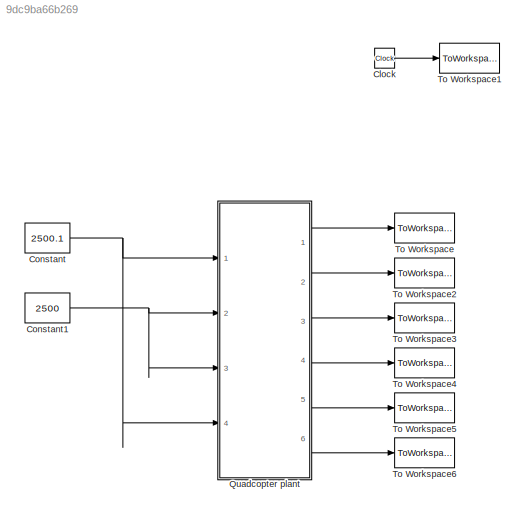
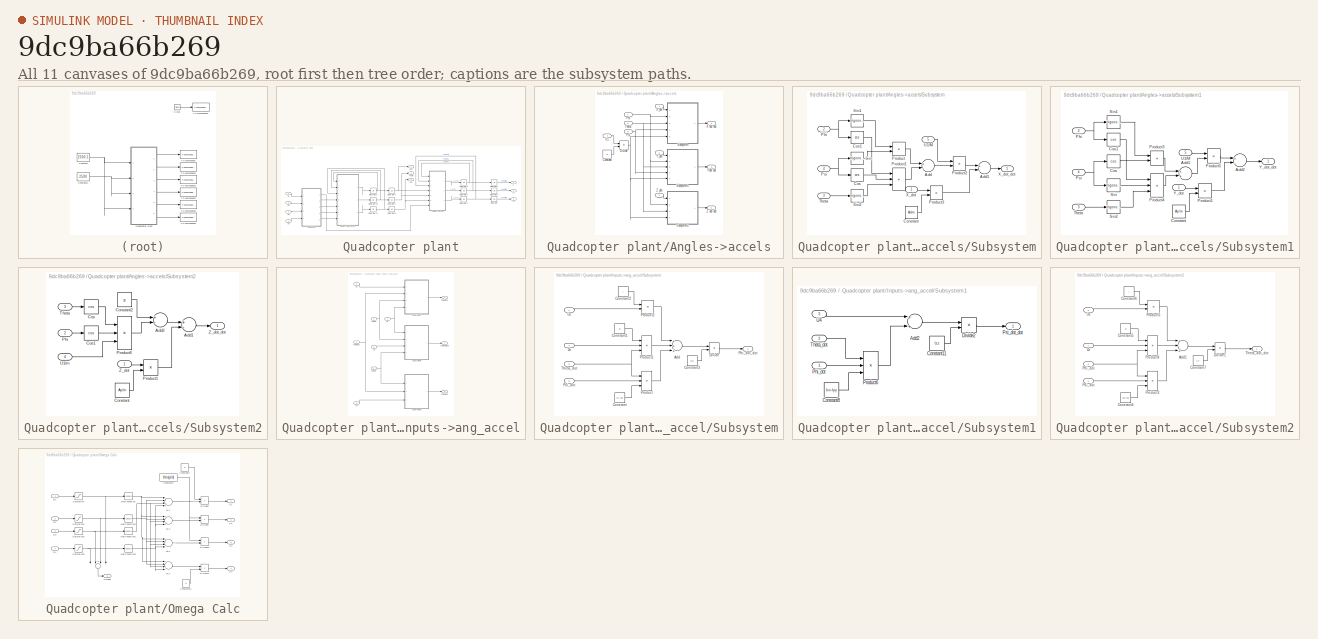
[diagram: thumbnail index - all 11 canvases of the model, root first then tree order]
MODEL slx_9dc9ba66b269
KIND model
CONFIG AbsTol = auto
CONFIG EnableMultiTasking = off
CONFIG FixedStep = .001
CONFIG MaxStep = auto
CONFIG MinStep = auto
CONFIG RelTol = 1e-3
CONFIG SampleTimeConstraint = Unconstrained
CONFIG Solver = VariableStepAuto
CONFIG SolverName = VariableStepAuto
CONFIG StartTime = 0.0
CONFIG StopTime = TF
BLOCK [Clock] Clock
BLOCK [Constant] Constant
  Value = 2500.1
BLOCK [Constant] Constant1
  Value = 2500
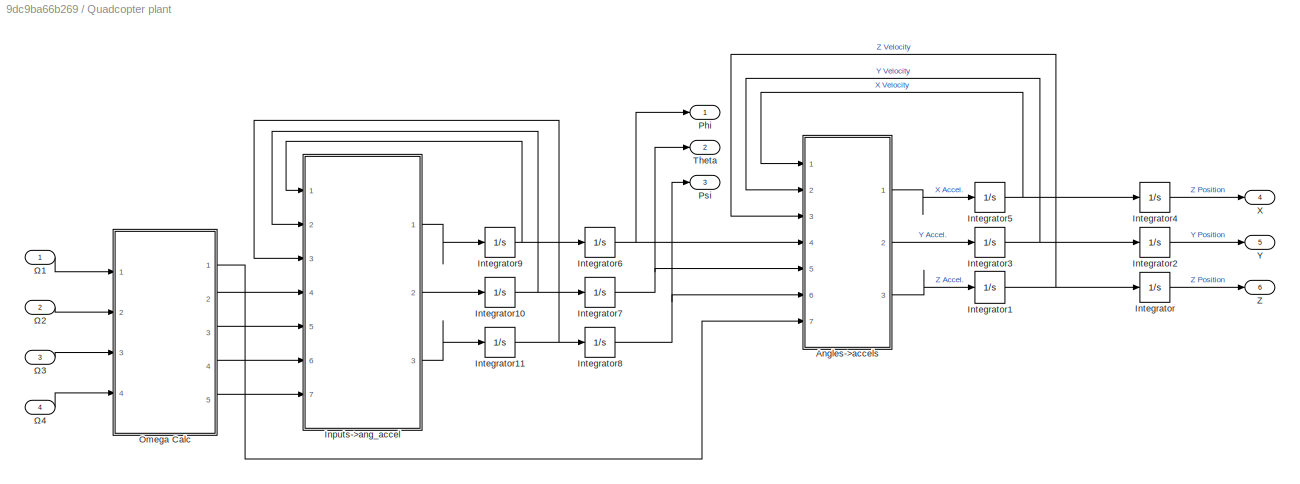
BLOCK [SubSystem] Quadcopter plant
  Ports = [4, 6]
  RequestExecContextInheritance = off
  Variant = off
BLOCK [SubSystem] Quadcopter plant/Angles->accels
  Ports = [7, 3]
  RequestExecContextInheritance = off
  Variant = off
BLOCK [Constant] Quadcopter plant/Angles->accels/Constant
  Value = m
BLOCK [Product] Quadcopter plant/Angles->accels/Divide
  InputSameDT = off
  Inputs = */
  OutDataTypeStr = Inherit: Inherit via internal rule
  Ports = [2, 1]
  RndMeth = Floor
  SaturateOnIntegerOverflow = off
BLOCK [Inport] Quadcopter plant/Angles->accels/Phi
  IconDisplay = Port number
  Port = 4
BLOCK [Inport] Quadcopter plant/Angles->accels/Psi
  IconDisplay = Port number
  Port = 6
BLOCK [SubSystem] Quadcopter plant/Angles->accels/Subsystem
  Ports = [5, 1]
  RequestExecContextInheritance = off
  Variant = off
BLOCK [Sum] Quadcopter plant/Angles->accels/Subsystem/Add
  InputSameDT = off
  Inputs = +-
  OutDataTypeStr = Inherit: Inherit via internal rule
  Ports = [2, 1]
  SaturateOnIntegerOverflow = off
BLOCK [Sum] Quadcopter plant/Angles->accels/Subsystem/Add1
  InputSameDT = off
  Inputs = +-
  OutDataTypeStr = Inherit: Inherit via internal rule
  Ports = [2, 1]
  SaturateOnIntegerOverflow = off
BLOCK [Constant] Quadcopter plant/Angles->accels/Subsystem/Constant
  Value = Ax/m
BLOCK [Trigonometry] Quadcopter plant/Angles->accels/Subsystem/Cos
  Operator = cos
  Ports = [1, 1]
BLOCK [Trigonometry] Quadcopter plant/Angles->accels/Subsystem/Cos1
  Operator = cos
  Ports = [1, 1]
BLOCK [Inport] Quadcopter plant/Angles->accels/Subsystem/Phi
  IconDisplay = Port number
  Port = 2
BLOCK [Product] Quadcopter plant/Angles->accels/Subsystem/Product
  InputSameDT = off
  OutDataTypeStr = Inherit: Inherit via internal rule
  Ports = [2, 1]
  RndMeth = Floor
  SaturateOnIntegerOverflow = off
BLOCK [Product] Quadcopter plant/Angles->accels/Subsystem/Product1
  InputSameDT = off
  Inputs = 3
  OutDataTypeStr = Inherit: Inherit via internal rule
  Ports = [3, 1]
  RndMeth = Floor
  SaturateOnIntegerOverflow = off
BLOCK [Product] Quadcopter plant/Angles->accels/Subsystem/Product2
  InputSameDT = off
  OutDataTypeStr = Inherit: Inherit via internal rule
  Ports = [2, 1]
  RndMeth = Floor
  SaturateOnIntegerOverflow = off
BLOCK [Product] Quadcopter plant/Angles->accels/Subsystem/Product3
  InputSameDT = off
  OutDataTypeStr = Inherit: Inherit via internal rule
  Ports = [2, 1]
  RndMeth = Floor
  SaturateOnIntegerOverflow = off
BLOCK [Inport] Quadcopter plant/Angles->accels/Subsystem/Psi
  IconDisplay = Port number
  Port = 4
BLOCK [Trigonometry] Quadcopter plant/Angles->accels/Subsystem/Sin
  Ports = [1, 1]
BLOCK [Trigonometry] Quadcopter plant/Angles->accels/Subsystem/Sin1
  Ports = [1, 1]
BLOCK [Trigonometry] Quadcopter plant/Angles->accels/Subsystem/Sin2
  Ports = [1, 1]
BLOCK [Inport] Quadcopter plant/Angles->accels/Subsystem/Theta
  IconDisplay = Port number
  Port = 3
BLOCK [Inport] Quadcopter plant/Angles->accels/Subsystem/U1//M
  IconDisplay = Port number
  Port = 5
BLOCK [Inport] Quadcopter plant/Angles->accels/Subsystem/X_dot
  IconDisplay = Port number
BLOCK [Outport] Quadcopter plant/Angles->accels/Subsystem/X_dot_dot
  IconDisplay = Port number
BLOCK [SubSystem] Quadcopter plant/Angles->accels/Subsystem1
  Ports = [5, 1]
  RequestExecContextInheritance = off
  Variant = off
BLOCK [Sum] Quadcopter plant/Angles->accels/Subsystem1/Add1
  InputSameDT = off
  OutDataTypeStr = Inherit: Inherit via internal rule
  Ports = [2, 1]
  SaturateOnIntegerOverflow = off
BLOCK [Sum] Quadcopter plant/Angles->accels/Subsystem1/Add2
  InputSameDT = off
  Inputs = +-
  OutDataTypeStr = Inherit: Inherit via internal rule
  Ports = [2, 1]
  SaturateOnIntegerOverflow = off
BLOCK [Constant] Quadcopter plant/Angles->accels/Subsystem1/Constant
  Value = Ay/m
BLOCK [Trigonometry] Quadcopter plant/Angles->accels/Subsystem1/Cos
  Operator = cos
  Ports = [1, 1]
BLOCK [Trigonometry] Quadcopter plant/Angles->accels/Subsystem1/Cos1
  Operator = cos
  Ports = [1, 1]
BLOCK [Inport] Quadcopter plant/Angles->accels/Subsystem1/Phi
  IconDisplay = Port number
  Port = 2
BLOCK [Product] Quadcopter plant/Angles->accels/Subsystem1/Product1
  InputSameDT = off
  OutDataTypeStr = Inherit: Inherit via internal rule
  Ports = [2, 1]
  RndMeth = Floor
  SaturateOnIntegerOverflow = off
BLOCK [Product] Quadcopter plant/Angles->accels/Subsystem1/Product3
  InputSameDT = off
  OutDataTypeStr = Inherit: Inherit via internal rule
  Ports = [2, 1]
  RndMeth = Floor
  SaturateOnIntegerOverflow = off
BLOCK [Product] Quadcopter plant/Angles->accels/Subsystem1/Product4
  InputSameDT = off
  Inputs = 3
  OutDataTypeStr = Inherit: Inherit via internal rule
  Ports = [3, 1]
  RndMeth = Floor
  SaturateOnIntegerOverflow = off
BLOCK [Product] Quadcopter plant/Angles->accels/Subsystem1/Product5
  InputSameDT = off
  OutDataTypeStr = Inherit: Inherit via internal rule
  Ports = [2, 1]
  RndMeth = Floor
  SaturateOnIntegerOverflow = off
BLOCK [Inport] Quadcopter plant/Angles->accels/Subsystem1/Psi
  IconDisplay = Port number
  Port = 4
BLOCK [Trigonometry] Quadcopter plant/Angles->accels/Subsystem1/Sin
  Ports = [1, 1]
BLOCK [Trigonometry] Quadcopter plant/Angles->accels/Subsystem1/Sin1
  Ports = [1, 1]
BLOCK [Trigonometry] Quadcopter plant/Angles->accels/Subsystem1/Sin2
  Ports = [1, 1]
BLOCK [Inport] Quadcopter plant/Angles->accels/Subsystem1/Theta
  IconDisplay = Port number
  Port = 3
BLOCK [Inport] Quadcopter plant/Angles->accels/Subsystem1/U1//M
  IconDisplay = Port number
  Port = 5
BLOCK [Inport] Quadcopter plant/Angles->accels/Subsystem1/Y_dot
  IconDisplay = Port number
BLOCK [Outport] Quadcopter plant/Angles->accels/Subsystem1/Y_dot_dot
  IconDisplay = Port number
BLOCK [SubSystem] Quadcopter plant/Angles->accels/Subsystem2
  Ports = [4, 1]
  RequestExecContextInheritance = off
  Variant = off
BLOCK [Sum] Quadcopter plant/Angles->accels/Subsystem2/Add1
  InputSameDT = off
  Inputs = +-
  OutDataTypeStr = Inherit: Inherit via internal rule
  Ports = [2, 1]
  SaturateOnIntegerOverflow = off
BLOCK [Sum] Quadcopter plant/Angles->accels/Subsystem2/Add2
  InputSameDT = off
  Inputs = +-
  OutDataTypeStr = Inherit: Inherit via internal rule
  Ports = [2, 1]
  SaturateOnIntegerOverflow = off
BLOCK [Constant] Quadcopter plant/Angles->accels/Subsystem2/Constant
  Value = Ay/m
BLOCK [Constant] Quadcopter plant/Angles->accels/Subsystem2/Constant2
  Value = g
BLOCK [Trigonometry] Quadcopter plant/Angles->accels/Subsystem2/Cos
  Operator = cos
  Ports = [1, 1]
BLOCK [Trigonometry] Quadcopter plant/Angles->accels/Subsystem2/Cos1
  Operator = cos
  Ports = [1, 1]
BLOCK [Inport] Quadcopter plant/Angles->accels/Subsystem2/Phi
  IconDisplay = Port number
  Port = 2
BLOCK [Product] Quadcopter plant/Angles->accels/Subsystem2/Product1
  InputSameDT = off
  OutDataTypeStr = Inherit: Inherit via internal rule
  Ports = [2, 1]
  RndMeth = Floor
  SaturateOnIntegerOverflow = off
BLOCK [Product] Quadcopter plant/Angles->accels/Subsystem2/Product6
  InputSameDT = off
  Inputs = 3
  OutDataTypeStr = Inherit: Inherit via internal rule
  Ports = [3, 1]
  RndMeth = Floor
  SaturateOnIntegerOverflow = off
BLOCK [Inport] Quadcopter plant/Angles->accels/Subsystem2/Theta
  IconDisplay = Port number
  Port = 3
BLOCK [Inport] Quadcopter plant/Angles->accels/Subsystem2/U1//m
  IconDisplay = Port number
  Port = 4
BLOCK [Inport] Quadcopter plant/Angles->accels/Subsystem2/Z_dot
  IconDisplay = Port number
BLOCK [Outport] Quadcopter plant/Angles->accels/Subsystem2/Z_dot_dot
  IconDisplay = Port number
BLOCK [Inport] Quadcopter plant/Angles->accels/Theta
  IconDisplay = Port number
  Port = 5
BLOCK [Inport] Quadcopter plant/Angles->accels/U1
  IconDisplay = Port number
  Port = 7
BLOCK [Outport] Quadcopter plant/Angles->accels/X dot dot
  IconDisplay = Port number
BLOCK [Inport] Quadcopter plant/Angles->accels/X_dot
  IconDisplay = Port number
BLOCK [Inport] Quadcopter plant/Angles->accels/Y_dot
  IconDisplay = Port number
  Port = 2
BLOCK [Outport] Quadcopter plant/Angles->accels/Ydot dot
  IconDisplay = Port number
  Port = 2
BLOCK [Outport] Quadcopter plant/Angles->accels/Z dot dot
  IconDisplay = Port number
  Port = 3
BLOCK [Inport] Quadcopter plant/Angles->accels/Z_dot
  IconDisplay = Port number
  Port = 3
BLOCK [SubSystem] Quadcopter plant/Inputs->ang_accel
  Ports = [7, 3]
  RequestExecContextInheritance = off
  Variant = off
BLOCK [Inport] Quadcopter plant/Inputs->ang_accel/Phi dot
  IconDisplay = Port number
BLOCK [Outport] Quadcopter plant/Inputs->ang_accel/Phi dot dot
  IconDisplay = Port number
BLOCK [Inport] Quadcopter plant/Inputs->ang_accel/Psi dot
  IconDisplay = Port number
  Port = 3
BLOCK [Outport] Quadcopter plant/Inputs->ang_accel/Psi dot dot
  IconDisplay = Port number
  Port = 3
BLOCK [SubSystem] Quadcopter plant/Inputs->ang_accel/Subsystem
  Ports = [4, 1]
  RequestExecContextInheritance = off
  Variant = off
BLOCK [Sum] Quadcopter plant/Inputs->ang_accel/Subsystem/Add
  InputSameDT = off
  Inputs = +++
  OutDataTypeStr = Inherit: Inherit via internal rule
  Ports = [3, 1]
  SaturateOnIntegerOverflow = off
BLOCK [Constant] Quadcopter plant/Inputs->ang_accel/Subsystem/Constant
  Value = Iyy-Izz
BLOCK [Constant] Quadcopter plant/Inputs->ang_accel/Subsystem/Constant1
  Value = Jr
BLOCK [Constant] Quadcopter plant/Inputs->ang_accel/Subsystem/Constant2
  Value = l
BLOCK [Constant] Quadcopter plant/Inputs->ang_accel/Subsystem/Constant3
  Value = Ixx
BLOCK [Product] Quadcopter plant/Inputs->ang_accel/Subsystem/Divide
  InputSameDT = off
  Inputs = */
  OutDataTypeStr = Inherit: Inherit via internal rule
  Ports = [2, 1]
  RndMeth = Floor
  SaturateOnIntegerOverflow = off
BLOCK [Outport] Quadcopter plant/Inputs->ang_accel/Subsystem/Phi_dot_dot
  IconDisplay = Port number
BLOCK [Product] Quadcopter plant/Inputs->ang_accel/Subsystem/Product
  InputSameDT = off
  Inputs = 3
  OutDataTypeStr = Inherit: Inherit via internal rule
  Ports = [3, 1]
  RndMeth = Floor
  SaturateOnIntegerOverflow = off
BLOCK [Product] Quadcopter plant/Inputs->ang_accel/Subsystem/Product1
  InputSameDT = off
  Inputs = 3
  OutDataTypeStr = Inherit: Inherit via internal rule
  Ports = [3, 1]
  RndMeth = Floor
  SaturateOnIntegerOverflow = off
BLOCK [Product] Quadcopter plant/Inputs->ang_accel/Subsystem/Product2
  InputSameDT = off
  OutDataTypeStr = Inherit: Inherit via internal rule
  Ports = [2, 1]
  RndMeth = Floor
  SaturateOnIntegerOverflow = off
BLOCK [Inport] Quadcopter plant/Inputs->ang_accel/Subsystem/Psi_dot
  IconDisplay = Port number
  Port = 3
BLOCK [Inport] Quadcopter plant/Inputs->ang_accel/Subsystem/Theta_dot
  IconDisplay = Port number
  Port = 2
BLOCK [Inport] Quadcopter plant/Inputs->ang_accel/Subsystem/U2
  IconDisplay = Port number
BLOCK [Inport] Quadcopter plant/Inputs->ang_accel/Subsystem/Ωr
  IconDisplay = Port number
  Port = 4
BLOCK [SubSystem] Quadcopter plant/Inputs->ang_accel/Subsystem1
  Ports = [3, 1]
  RequestExecContextInheritance = off
  Variant = off
BLOCK [Sum] Quadcopter plant/Inputs->ang_accel/Subsystem1/Add2
  InputSameDT = off
  OutDataTypeStr = Inherit: Inherit via internal rule
  Ports = [2, 1]
  SaturateOnIntegerOverflow = off
BLOCK [Constant] Quadcopter plant/Inputs->ang_accel/Subsystem1/Constant11
  Value = Izz
BLOCK [Constant] Quadcopter plant/Inputs->ang_accel/Subsystem1/Constant8
  Value = Ixx-Iyy
BLOCK [Product] Quadcopter plant/Inputs->ang_accel/Subsystem1/Divide2
  InputSameDT = off
  Inputs = */
  OutDataTypeStr = Inherit: Inherit via internal rule
  Ports = [2, 1]
  RndMeth = Floor
  SaturateOnIntegerOverflow = off
BLOCK [Inport] Quadcopter plant/Inputs->ang_accel/Subsystem1/Phi_dot
  IconDisplay = Port number
BLOCK [Product] Quadcopter plant/Inputs->ang_accel/Subsystem1/Product6
  InputSameDT = off
  Inputs = 3
  OutDataTypeStr = Inherit: Inherit via internal rule
  Ports = [3, 1]
  RndMeth = Floor
  SaturateOnIntegerOverflow = off
BLOCK [Outport] Quadcopter plant/Inputs->ang_accel/Subsystem1/Psi_dot_dot
  IconDisplay = Port number
BLOCK [Inport] Quadcopter plant/Inputs->ang_accel/Subsystem1/Theta_dot
  IconDisplay = Port number
  Port = 2
BLOCK [Inport] Quadcopter plant/Inputs->ang_accel/Subsystem1/U4
  IconDisplay = Port number
  Port = 3
BLOCK [SubSystem] Quadcopter plant/Inputs->ang_accel/Subsystem2
  Ports = [4, 1]
  RequestExecContextInheritance = off
  Variant = off
BLOCK [Sum] Quadcopter plant/Inputs->ang_accel/Subsystem2/Add1
  InputSameDT = off
  Inputs = +-+
  OutDataTypeStr = Inherit: Inherit via internal rule
  Ports = [3, 1]
  SaturateOnIntegerOverflow = off
BLOCK [Constant] Quadcopter plant/Inputs->ang_accel/Subsystem2/Constant4
  Value = Izz-Ixx
BLOCK [Constant] Quadcopter plant/Inputs->ang_accel/Subsystem2/Constant5
  Value = Jr
BLOCK [Constant] Quadcopter plant/Inputs->ang_accel/Subsystem2/Constant6
  Value = l
BLOCK [Constant] Quadcopter plant/Inputs->ang_accel/Subsystem2/Constant7
  Value = Iyy
BLOCK [Product] Quadcopter plant/Inputs->ang_accel/Subsystem2/Divide1
  InputSameDT = off
  Inputs = */
  OutDataTypeStr = Inherit: Inherit via internal rule
  Ports = [2, 1]
  RndMeth = Floor
  SaturateOnIntegerOverflow = off
BLOCK [Inport] Quadcopter plant/Inputs->ang_accel/Subsystem2/Phi_dot
  IconDisplay = Port number
  Port = 4
BLOCK [Product] Quadcopter plant/Inputs->ang_accel/Subsystem2/Product3
  InputSameDT = off
  Inputs = 3
  OutDataTypeStr = Inherit: Inherit via internal rule
  Ports = [3, 1]
  RndMeth = Floor
  SaturateOnIntegerOverflow = off
BLOCK [Product] Quadcopter plant/Inputs->ang_accel/Subsystem2/Product4
  InputSameDT = off
  Inputs = 3
  OutDataTypeStr = Inherit: Inherit via internal rule
  Ports = [3, 1]
  RndMeth = Floor
  SaturateOnIntegerOverflow = off
BLOCK [Product] Quadcopter plant/Inputs->ang_accel/Subsystem2/Product5
  InputSameDT = off
  OutDataTypeStr = Inherit: Inherit via internal rule
  Ports = [2, 1]
  RndMeth = Floor
  SaturateOnIntegerOverflow = off
BLOCK [Inport] Quadcopter plant/Inputs->ang_accel/Subsystem2/Psi_dot
  IconDisplay = Port number
  Port = 2
BLOCK [Outport] Quadcopter plant/Inputs->ang_accel/Subsystem2/Theta_dot_dot
  IconDisplay = Port number
BLOCK [Inport] Quadcopter plant/Inputs->ang_accel/Subsystem2/U3
  IconDisplay = Port number
  Port = 3
BLOCK [Inport] Quadcopter plant/Inputs->ang_accel/Subsystem2/Ωr
  IconDisplay = Port number
BLOCK [Inport] Quadcopter plant/Inputs->ang_accel/Theta dot
  IconDisplay = Port number
  Port = 2
BLOCK [Outport] Quadcopter plant/Inputs->ang_accel/Theta dot dot
  IconDisplay = Port number
  Port = 2
BLOCK [Inport] Quadcopter plant/Inputs->ang_accel/U2
  IconDisplay = Port number
  Port = 4
BLOCK [Inport] Quadcopter plant/Inputs->ang_accel/U3
  IconDisplay = Port number
  Port = 5
BLOCK [Inport] Quadcopter plant/Inputs->ang_accel/U4
  IconDisplay = Port number
  Port = 6
BLOCK [Inport] Quadcopter plant/Inputs->ang_accel/Ωr
  IconDisplay = Port number
  Port = 7
BLOCK [Integrator] Quadcopter plant/Integrator
  LimitOutput = on
  Ports = [1, 1]
  UpperSaturationLimit = 0
BLOCK [Integrator] Quadcopter plant/Integrator1
  Ports = [1, 1]
BLOCK [Integrator] Quadcopter plant/Integrator10
  LowerSaturationLimit = -10000
  Ports = [1, 1]
  UpperSaturationLimit = 10000
BLOCK [Integrator] Quadcopter plant/Integrator11
  LowerSaturationLimit = -10000
  Ports = [1, 1]
  UpperSaturationLimit = 10000
BLOCK [Integrator] Quadcopter plant/Integrator2
  Ports = [1, 1]
BLOCK [Integrator] Quadcopter plant/Integrator3
  Ports = [1, 1]
BLOCK [Integrator] Quadcopter plant/Integrator4
  Ports = [1, 1]
BLOCK [Integrator] Quadcopter plant/Integrator5
  Ports = [1, 1]
BLOCK [Integrator] Quadcopter plant/Integrator6
  Ports = [1, 1]
  WrapState = on
BLOCK [Integrator] Quadcopter plant/Integrator7
  Ports = [1, 1]
  WrapState = on
BLOCK [Integrator] Quadcopter plant/Integrator8
  Ports = [1, 1]
BLOCK [Integrator] Quadcopter plant/Integrator9
  Ports = [1, 1]
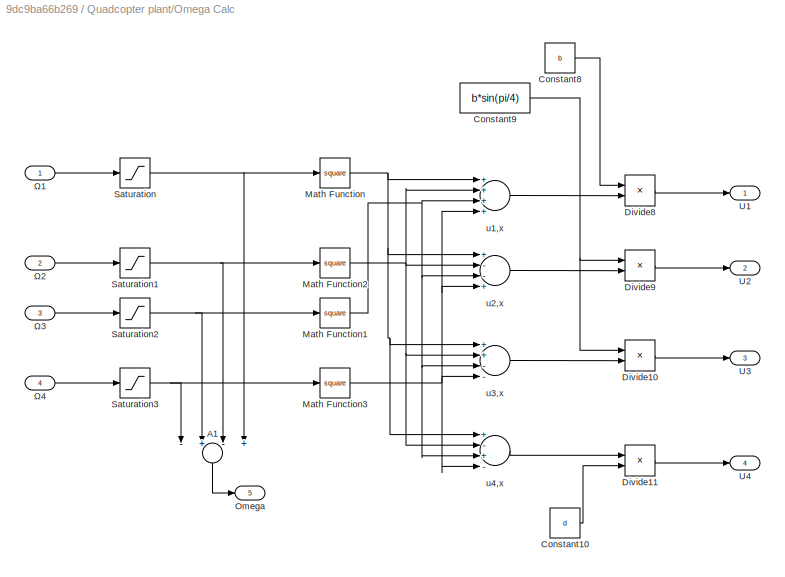
BLOCK [SubSystem] Quadcopter plant/Omega Calc
  Ports = [4, 5]
  RequestExecContextInheritance = off
  Variant = off
BLOCK [Sum] Quadcopter plant/Omega Calc/A1
  InputSameDT = off
  Inputs = -+-+
  OutDataTypeStr = Inherit: Inherit via internal rule
  Ports = [4, 1]
  SaturateOnIntegerOverflow = off
BLOCK [Constant] Quadcopter plant/Omega Calc/Constant10
  Value = d
BLOCK [Constant] Quadcopter plant/Omega Calc/Constant8
  Value = b
BLOCK [Constant] Quadcopter plant/Omega Calc/Constant9
  Value = b*sin(pi/4)
BLOCK [Product] Quadcopter plant/Omega Calc/Divide10
  InputSameDT = off
  Inputs = **
  OutDataTypeStr = Inherit: Inherit via internal rule
  Ports = [2, 1]
  RndMeth = Floor
  SaturateOnIntegerOverflow = off
BLOCK [Product] Quadcopter plant/Omega Calc/Divide11
  InputSameDT = off
  Inputs = **
  OutDataTypeStr = Inherit: Inherit via internal rule
  Ports = [2, 1]
  RndMeth = Floor
  SaturateOnIntegerOverflow = off
BLOCK [Product] Quadcopter plant/Omega Calc/Divide8
  InputSameDT = off
  Inputs = **
  OutDataTypeStr = Inherit: Inherit via internal rule
  Ports = [2, 1]
  RndMeth = Floor
  SaturateOnIntegerOverflow = off
BLOCK [Product] Quadcopter plant/Omega Calc/Divide9
  InputSameDT = off
  Inputs = **
  OutDataTypeStr = Inherit: Inherit via internal rule
  Ports = [2, 1]
  RndMeth = Floor
  SaturateOnIntegerOverflow = off
BLOCK [Math] Quadcopter plant/Omega Calc/Math Function
  Operator = square
  Ports = [1, 1]
BLOCK [Math] Quadcopter plant/Omega Calc/Math Function1
  Operator = square
  Ports = [1, 1]
BLOCK [Math] Quadcopter plant/Omega Calc/Math Function2
  Operator = square
  Ports = [1, 1]
BLOCK [Math] Quadcopter plant/Omega Calc/Math Function3
  Operator = square
  Ports = [1, 1]
BLOCK [Outport] Quadcopter plant/Omega Calc/Omega
  IconDisplay = Port number
  Port = 5
BLOCK [Saturate] Quadcopter plant/Omega Calc/Saturation
  InputPortMap = u0
  LowerLimit = 0
  Ports = [1, 1]
  UpperLimit = inf
BLOCK [Saturate] Quadcopter plant/Omega Calc/Saturation1
  InputPortMap = u0
  LowerLimit = 0
  Ports = [1, 1]
  UpperLimit = inf
BLOCK [Saturate] Quadcopter plant/Omega Calc/Saturation2
  InputPortMap = u0
  LowerLimit = 0
  Ports = [1, 1]
  UpperLimit = inf
BLOCK [Saturate] Quadcopter plant/Omega Calc/Saturation3
  InputPortMap = u0
  LowerLimit = 0
  Ports = [1, 1]
  UpperLimit = inf
BLOCK [Outport] Quadcopter plant/Omega Calc/U1
  IconDisplay = Port number
BLOCK [Outport] Quadcopter plant/Omega Calc/U2
  IconDisplay = Port number
  Port = 2
BLOCK [Outport] Quadcopter plant/Omega Calc/U3
  IconDisplay = Port number
  Port = 3
BLOCK [Outport] Quadcopter plant/Omega Calc/U4
  IconDisplay = Port number
  Port = 4
BLOCK [Sum] Quadcopter plant/Omega Calc/u1,x
  InputSameDT = off
  Inputs = ++++
  OutDataTypeStr = Inherit: Inherit via internal rule
  Ports = [4, 1]
  SaturateOnIntegerOverflow = off
BLOCK [Sum] Quadcopter plant/Omega Calc/u2,x
  InputSameDT = off
  Inputs = +--+
  OutDataTypeStr = Inherit: Inherit via internal rule
  Ports = [4, 1]
  SaturateOnIntegerOverflow = off
BLOCK [Sum] Quadcopter plant/Omega Calc/u3,x
  InputSameDT = off
  Inputs = ++--
  OutDataTypeStr = Inherit: Inherit via internal rule
  Ports = [4, 1]
  SaturateOnIntegerOverflow = off
BLOCK [Sum] Quadcopter plant/Omega Calc/u4,x
  InputSameDT = off
  Inputs = +-+-
  OutDataTypeStr = Inherit: Inherit via internal rule
  Ports = [4, 1]
  SaturateOnIntegerOverflow = off
BLOCK [Inport] Quadcopter plant/Omega Calc/Ω1
  IconDisplay = Port number
BLOCK [Inport] Quadcopter plant/Omega Calc/Ω2
  IconDisplay = Port number
  Port = 2
BLOCK [Inport] Quadcopter plant/Omega Calc/Ω3
  IconDisplay = Port number
  Port = 3
BLOCK [Inport] Quadcopter plant/Omega Calc/Ω4
  IconDisplay = Port number
  Port = 4
BLOCK [Outport] Quadcopter plant/Phi
  IconDisplay = Port number
BLOCK [Outport] Quadcopter plant/Psi
  IconDisplay = Port number
  Port = 3
BLOCK [Outport] Quadcopter plant/Theta
  IconDisplay = Port number
  Port = 2
BLOCK [Outport] Quadcopter plant/X
  IconDisplay = Port number
  Port = 4
BLOCK [Outport] Quadcopter plant/Y
  IconDisplay = Port number
  Port = 5
BLOCK [Outport] Quadcopter plant/Z
  IconDisplay = Port number
  Port = 6
BLOCK [Inport] Quadcopter plant/Ω1
  IconDisplay = Port number
BLOCK [Inport] Quadcopter plant/Ω2
  IconDisplay = Port number
  Port = 2
BLOCK [Inport] Quadcopter plant/Ω3
  IconDisplay = Port number
  Port = 3
BLOCK [Inport] Quadcopter plant/Ω4
  IconDisplay = Port number
  Port = 4
BLOCK [ToWorkspace] To Workspace
  FixptAsFi = on
  MaxDataPoints = inf
  Ports = [1]
  SampleTime = -1
  Save2DSignal = 2-D array (concatenate along first dimension)
  VariableName = Phi
BLOCK [ToWorkspace] To Workspace1
  FixptAsFi = on
  MaxDataPoints = inf
  Ports = [1]
  SampleTime = -1
  Save2DSignal = 2-D array (concatenate along first dimension)
  VariableName = time
BLOCK [ToWorkspace] To Workspace2
  FixptAsFi = on
  MaxDataPoints = inf
  Ports = [1]
  SampleTime = -1
  Save2DSignal = 2-D array (concatenate along first dimension)
  VariableName = Theta
BLOCK [ToWorkspace] To Workspace3
  FixptAsFi = on
  MaxDataPoints = inf
  Ports = [1]
  SampleTime = -1
  Save2DSignal = 2-D array (concatenate along first dimension)
  VariableName = Psi
BLOCK [ToWorkspace] To Workspace4
  FixptAsFi = on
  MaxDataPoints = inf
  Ports = [1]
  SampleTime = -1
  Save2DSignal = 2-D array (concatenate along first dimension)
  VariableName = X
BLOCK [ToWorkspace] To Workspace5
  FixptAsFi = on
  MaxDataPoints = inf
  Ports = [1]
  SampleTime = -1
  Save2DSignal = 2-D array (concatenate along first dimension)
  VariableName = Y
BLOCK [ToWorkspace] To Workspace6
  FixptAsFi = on
  MaxDataPoints = inf
  Ports = [1]
  SampleTime = -1
  Save2DSignal = 2-D array (concatenate along first dimension)
  VariableName = Z
LINE Clock:1 -> To Workspace1:1
NET Constant1:1 -> Quadcopter plant:2, Quadcopter plant:3
NET Constant:1 -> Quadcopter plant:1, Quadcopter plant:4
LINE Quadcopter plant/Angles->accels/Constant:1 -> Quadcopter plant/Angles->accels/Divide:2
NET Quadcopter plant/Angles->accels/Divide:1 -> Quadcopter plant/Angles->accels/Subsystem1:5, Quadcopter plant/Angles->accels/Subsystem2:4, Quadcopter plant/Angles->accels/Subsystem:5
NET Quadcopter plant/Angles->accels/Phi:1 -> Quadcopter plant/Angles->accels/Subsystem1:2, Quadcopter plant/Angles->accels/Subsystem2:2, Quadcopter plant/Angles->accels/Subsystem:2
NET Quadcopter plant/Angles->accels/Psi:1 -> Quadcopter plant/Angles->accels/Subsystem1:4, Quadcopter plant/Angles->accels/Subsystem:4
LINE Quadcopter plant/Angles->accels/Subsystem/Add1:1 -> Quadcopter plant/Angles->accels/Subsystem/X_dot_dot:1
LINE Quadcopter plant/Angles->accels/Subsystem/Add:1 -> Quadcopter plant/Angles->accels/Subsystem/Product2:2
LINE Quadcopter plant/Angles->accels/Subsystem/Constant:1 -> Quadcopter plant/Angles->accels/Subsystem/Product3:2
LINE Quadcopter plant/Angles->accels/Subsystem/Cos1:1 -> Quadcopter plant/Angles->accels/Subsystem/Product1:1
LINE Quadcopter plant/Angles->accels/Subsystem/Cos:1 -> Quadcopter plant/Angles->accels/Subsystem/Product1:2
NET Quadcopter plant/Angles->accels/Subsystem/Phi:1 -> Quadcopter plant/Angles->accels/Subsystem/Cos1:1, Quadcopter plant/Angles->accels/Subsystem/Sin1:1
LINE Quadcopter plant/Angles->accels/Subsystem/Product1:1 -> Quadcopter plant/Angles->accels/Subsystem/Add:2
LINE Quadcopter plant/Angles->accels/Subsystem/Product2:1 -> Quadcopter plant/Angles->accels/Subsystem/Add1:1
LINE Quadcopter plant/Angles->accels/Subsystem/Product3:1 -> Quadcopter plant/Angles->accels/Subsystem/Add1:2
LINE Quadcopter plant/Angles->accels/Subsystem/Product:1 -> Quadcopter plant/Angles->accels/Subsystem/Add:1
NET Quadcopter plant/Angles->accels/Subsystem/Psi:1 -> Quadcopter plant/Angles->accels/Subsystem/Cos:1, Quadcopter plant/Angles->accels/Subsystem/Sin:1
LINE Quadcopter plant/Angles->accels/Subsystem/Sin1:1 -> Quadcopter plant/Angles->accels/Subsystem/Product:1
LINE Quadcopter plant/Angles->accels/Subsystem/Sin2:1 -> Quadcopter plant/Angles->accels/Subsystem/Product1:3
LINE Quadcopter plant/Angles->accels/Subsystem/Sin:1 -> Quadcopter plant/Angles->accels/Subsystem/Product:2
LINE Quadcopter plant/Angles->accels/Subsystem/Theta:1 -> Quadcopter plant/Angles->accels/Subsystem/Sin2:1
LINE Quadcopter plant/Angles->accels/Subsystem/U1//M:1 -> Quadcopter plant/Angles->accels/Subsystem/Product2:1
LINE Quadcopter plant/Angles->accels/Subsystem/X_dot:1 -> Quadcopter plant/Angles->accels/Subsystem/Product3:1
LINE Quadcopter plant/Angles->accels/Subsystem1/Add1:1 -> Quadcopter plant/Angles->accels/Subsystem1/Product5:2
LINE Quadcopter plant/Angles->accels/Subsystem1/Add2:1 -> Quadcopter plant/Angles->accels/Subsystem1/Y_dot_dot:1
LINE Quadcopter plant/Angles->accels/Subsystem1/Constant:1 -> Quadcopter plant/Angles->accels/Subsystem1/Product1:2
LINE Quadcopter plant/Angles->accels/Subsystem1/Cos1:1 -> Quadcopter plant/Angles->accels/Subsystem1/Product4:1
LINE Quadcopter plant/Angles->accels/Subsystem1/Cos:1 -> Quadcopter plant/Angles->accels/Subsystem1/Product3:2
NET Quadcopter plant/Angles->accels/Subsystem1/Phi:1 -> Quadcopter plant/Angles->accels/Subsystem1/Cos1:1, Quadcopter plant/Angles->accels/Subsystem1/Sin1:1
LINE Quadcopter plant/Angles->accels/Subsystem1/Product1:1 -> Quadcopter plant/Angles->accels/Subsystem1/Add2:2
LINE Quadcopter plant/Angles->accels/Subsystem1/Product3:1 -> Quadcopter plant/Angles->accels/Subsystem1/Add1:1
LINE Quadcopter plant/Angles->accels/Subsystem1/Product4:1 -> Quadcopter plant/Angles->accels/Subsystem1/Add1:2
LINE Quadcopter plant/Angles->accels/Subsystem1/Product5:1 -> Quadcopter plant/Angles->accels/Subsystem1/Add2:1
NET Quadcopter plant/Angles->accels/Subsystem1/Psi:1 -> Quadcopter plant/Angles->accels/Subsystem1/Cos:1, Quadcopter plant/Angles->accels/Subsystem1/Sin:1
LINE Quadcopter plant/Angles->accels/Subsystem1/Sin1:1 -> Quadcopter plant/Angles->accels/Subsystem1/Product3:1
LINE Quadcopter plant/Angles->accels/Subsystem1/Sin2:1 -> Quadcopter plant/Angles->accels/Subsystem1/Product4:3
LINE Quadcopter plant/Angles->accels/Subsystem1/Sin:1 -> Quadcopter plant/Angles->accels/Subsystem1/Product4:2
LINE Quadcopter plant/Angles->accels/Subsystem1/Theta:1 -> Quadcopter plant/Angles->accels/Subsystem1/Sin2:1
LINE Quadcopter plant/Angles->accels/Subsystem1/U1//M:1 -> Quadcopter plant/Angles->accels/Subsystem1/Product5:1
LINE Quadcopter plant/Angles->accels/Subsystem1/Y_dot:1 -> Quadcopter plant/Angles->accels/Subsystem1/Product1:1
LINE Quadcopter plant/Angles->accels/Subsystem1:1 -> Quadcopter plant/Angles->accels/Ydot dot:1
LINE Quadcopter plant/Angles->accels/Subsystem2/Add1:1 -> Quadcopter plant/Angles->accels/Subsystem2/Z_dot_dot:1
LINE Quadcopter plant/Angles->accels/Subsystem2/Add2:1 -> Quadcopter plant/Angles->accels/Subsystem2/Add1:1
LINE Quadcopter plant/Angles->accels/Subsystem2/Constant2:1 -> Quadcopter plant/Angles->accels/Subsystem2/Add2:1
LINE Quadcopter plant/Angles->accels/Subsystem2/Constant:1 -> Quadcopter plant/Angles->accels/Subsystem2/Product1:2
LINE Quadcopter plant/Angles->accels/Subsystem2/Cos1:1 -> Quadcopter plant/Angles->accels/Subsystem2/Product6:2
LINE Quadcopter plant/Angles->accels/Subsystem2/Cos:1 -> Quadcopter plant/Angles->accels/Subsystem2/Product6:1
LINE Quadcopter plant/Angles->accels/Subsystem2/Phi:1 -> Quadcopter plant/Angles->accels/Subsystem2/Cos1:1
LINE Quadcopter plant/Angles->accels/Subsystem2/Product1:1 -> Quadcopter plant/Angles->accels/Subsystem2/Add1:2
LINE Quadcopter plant/Angles->accels/Subsystem2/Product6:1 -> Quadcopter plant/Angles->accels/Subsystem2/Add2:2
LINE Quadcopter plant/Angles->accels/Subsystem2/Theta:1 -> Quadcopter plant/Angles->accels/Subsystem2/Cos:1
LINE Quadcopter plant/Angles->accels/Subsystem2/U1//m:1 -> Quadcopter plant/Angles->accels/Subsystem2/Product6:3
LINE Quadcopter plant/Angles->accels/Subsystem2/Z_dot:1 -> Quadcopter plant/Angles->accels/Subsystem2/Product1:1
LINE Quadcopter plant/Angles->accels/Subsystem2:1 -> Quadcopter plant/Angles->accels/Z dot dot:1
LINE Quadcopter plant/Angles->accels/Subsystem:1 -> Quadcopter plant/Angles->accels/X dot dot:1
NET Quadcopter plant/Angles->accels/Theta:1 -> Quadcopter plant/Angles->accels/Subsystem1:3, Quadcopter plant/Angles->accels/Subsystem2:3, Quadcopter plant/Angles->accels/Subsystem:3
LINE Quadcopter plant/Angles->accels/U1:1 -> Quadcopter plant/Angles->accels/Divide:1
LINE Quadcopter plant/Angles->accels/X_dot:1 -> Quadcopter plant/Angles->accels/Subsystem:1
LINE Quadcopter plant/Angles->accels/Y_dot:1 -> Quadcopter plant/Angles->accels/Subsystem1:1
LINE Quadcopter plant/Angles->accels/Z_dot:1 -> Quadcopter plant/Angles->accels/Subsystem2:1
LINE Quadcopter plant/Angles->accels:1 -> Quadcopter plant/Integrator5:1
LINE Quadcopter plant/Angles->accels:2 -> Quadcopter plant/Integrator3:1
LINE Quadcopter plant/Angles->accels:3 -> Quadcopter plant/Integrator1:1
NET Quadcopter plant/Inputs->ang_accel/Phi dot:1 -> Quadcopter plant/Inputs->ang_accel/Subsystem1:1, Quadcopter plant/Inputs->ang_accel/Subsystem2:4
NET Quadcopter plant/Inputs->ang_accel/Psi dot:1 -> Quadcopter plant/Inputs->ang_accel/Subsystem2:2, Quadcopter plant/Inputs->ang_accel/Subsystem:3
LINE Quadcopter plant/Inputs->ang_accel/Subsystem/Add:1 -> Quadcopter plant/Inputs->ang_accel/Subsystem/Divide:1
LINE Quadcopter plant/Inputs->ang_accel/Subsystem/Constant1:1 -> Quadcopter plant/Inputs->ang_accel/Subsystem/Product1:1
LINE Quadcopter plant/Inputs->ang_accel/Subsystem/Constant2:1 -> Quadcopter plant/Inputs->ang_accel/Subsystem/Product2:1
LINE Quadcopter plant/Inputs->ang_accel/Subsystem/Constant3:1 -> Quadcopter plant/Inputs->ang_accel/Subsystem/Divide:2
LINE Quadcopter plant/Inputs->ang_accel/Subsystem/Constant:1 -> Quadcopter plant/Inputs->ang_accel/Subsystem/Product:3
LINE Quadcopter plant/Inputs->ang_accel/Subsystem/Divide:1 -> Quadcopter plant/Inputs->ang_accel/Subsystem/Phi_dot_dot:1
LINE Quadcopter plant/Inputs->ang_accel/Subsystem/Product1:1 -> Quadcopter plant/Inputs->ang_accel/Subsystem/Add:2
LINE Quadcopter plant/Inputs->ang_accel/Subsystem/Product2:1 -> Quadcopter plant/Inputs->ang_accel/Subsystem/Add:1
LINE Quadcopter plant/Inputs->ang_accel/Subsystem/Product:1 -> Quadcopter plant/Inputs->ang_accel/Subsystem/Add:3
LINE Quadcopter plant/Inputs->ang_accel/Subsystem/Psi_dot:1 -> Quadcopter plant/Inputs->ang_accel/Subsystem/Product:2
NET Quadcopter plant/Inputs->ang_accel/Subsystem/Theta_dot:1 -> Quadcopter plant/Inputs->ang_accel/Subsystem/Product1:3, Quadcopter plant/Inputs->ang_accel/Subsystem/Product:1
LINE Quadcopter plant/Inputs->ang_accel/Subsystem/U2:1 -> Quadcopter plant/Inputs->ang_accel/Subsystem/Product2:2
LINE Quadcopter plant/Inputs->ang_accel/Subsystem/Ωr:1 -> Quadcopter plant/Inputs->ang_accel/Subsystem/Product1:2
LINE Quadcopter plant/Inputs->ang_accel/Subsystem1/Add2:1 -> Quadcopter plant/Inputs->ang_accel/Subsystem1/Divide2:1
LINE Quadcopter plant/Inputs->ang_accel/Subsystem1/Constant11:1 -> Quadcopter plant/Inputs->ang_accel/Subsystem1/Divide2:2
LINE Quadcopter plant/Inputs->ang_accel/Subsystem1/Constant8:1 -> Quadcopter plant/Inputs->ang_accel/Subsystem1/Product6:3
LINE Quadcopter plant/Inputs->ang_accel/Subsystem1/Divide2:1 -> Quadcopter plant/Inputs->ang_accel/Subsystem1/Psi_dot_dot:1
LINE Quadcopter plant/Inputs->ang_accel/Subsystem1/Phi_dot:1 -> Quadcopter plant/Inputs->ang_accel/Subsystem1/Product6:2
LINE Quadcopter plant/Inputs->ang_accel/Subsystem1/Product6:1 -> Quadcopter plant/Inputs->ang_accel/Subsystem1/Add2:2
LINE Quadcopter plant/Inputs->ang_accel/Subsystem1/Theta_dot:1 -> Quadcopter plant/Inputs->ang_accel/Subsystem1/Product6:1
LINE Quadcopter plant/Inputs->ang_accel/Subsystem1/U4:1 -> Quadcopter plant/Inputs->ang_accel/Subsystem1/Add2:1
LINE Quadcopter plant/Inputs->ang_accel/Subsystem1:1 -> Quadcopter plant/Inputs->ang_accel/Psi dot dot:1
LINE Quadcopter plant/Inputs->ang_accel/Subsystem2/Add1:1 -> Quadcopter plant/Inputs->ang_accel/Subsystem2/Divide1:1
LINE Quadcopter plant/Inputs->ang_accel/Subsystem2/Constant4:1 -> Quadcopter plant/Inputs->ang_accel/Subsystem2/Product3:3
LINE Quadcopter plant/Inputs->ang_accel/Subsystem2/Constant5:1 -> Quadcopter plant/Inputs->ang_accel/Subsystem2/Product4:1
LINE Quadcopter plant/Inputs->ang_accel/Subsystem2/Constant6:1 -> Quadcopter plant/Inputs->ang_accel/Subsystem2/Product5:1
LINE Quadcopter plant/Inputs->ang_accel/Subsystem2/Constant7:1 -> Quadcopter plant/Inputs->ang_accel/Subsystem2/Divide1:2
LINE Quadcopter plant/Inputs->ang_accel/Subsystem2/Divide1:1 -> Quadcopter plant/Inputs->ang_accel/Subsystem2/Theta_dot_dot:1
NET Quadcopter plant/Inputs->ang_accel/Subsystem2/Phi_dot:1 -> Quadcopter plant/Inputs->ang_accel/Subsystem2/Product3:1, Quadcopter plant/Inputs->ang_accel/Subsystem2/Product4:3
LINE Quadcopter plant/Inputs->ang_accel/Subsystem2/Product3:1 -> Quadcopter plant/Inputs->ang_accel/Subsystem2/Add1:3
LINE Quadcopter plant/Inputs->ang_accel/Subsystem2/Product4:1 -> Quadcopter plant/Inputs->ang_accel/Subsystem2/Add1:2
LINE Quadcopter plant/Inputs->ang_accel/Subsystem2/Product5:1 -> Quadcopter plant/Inputs->ang_accel/Subsystem2/Add1:1
LINE Quadcopter plant/Inputs->ang_accel/Subsystem2/Psi_dot:1 -> Quadcopter plant/Inputs->ang_accel/Subsystem2/Product3:2
LINE Quadcopter plant/Inputs->ang_accel/Subsystem2/U3:1 -> Quadcopter plant/Inputs->ang_accel/Subsystem2/Product5:2
LINE Quadcopter plant/Inputs->ang_accel/Subsystem2/Ωr:1 -> Quadcopter plant/Inputs->ang_accel/Subsystem2/Product4:2
LINE Quadcopter plant/Inputs->ang_accel/Subsystem2:1 -> Quadcopter plant/Inputs->ang_accel/Theta dot dot:1
LINE Quadcopter plant/Inputs->ang_accel/Subsystem:1 -> Quadcopter plant/Inputs->ang_accel/Phi dot dot:1
NET Quadcopter plant/Inputs->ang_accel/Theta dot:1 -> Quadcopter plant/Inputs->ang_accel/Subsystem1:2, Quadcopter plant/Inputs->ang_accel/Subsystem:2
LINE Quadcopter plant/Inputs->ang_accel/U2:1 -> Quadcopter plant/Inputs->ang_accel/Subsystem:1
LINE Quadcopter plant/Inputs->ang_accel/U3:1 -> Quadcopter plant/Inputs->ang_accel/Subsystem2:3
LINE Quadcopter plant/Inputs->ang_accel/U4:1 -> Quadcopter plant/Inputs->ang_accel/Subsystem1:3
NET Quadcopter plant/Inputs->ang_accel/Ωr:1 -> Quadcopter plant/Inputs->ang_accel/Subsystem2:1, Quadcopter plant/Inputs->ang_accel/Subsystem:4
LINE Quadcopter plant/Inputs->ang_accel:1 -> Quadcopter plant/Integrator9:1
LINE Quadcopter plant/Inputs->ang_accel:2 -> Quadcopter plant/Integrator10:1
LINE Quadcopter plant/Inputs->ang_accel:3 -> Quadcopter plant/Integrator11:1
NET Quadcopter plant/Integrator10:1 -> Quadcopter plant/Inputs->ang_accel:2, Quadcopter plant/Integrator7:1
NET Quadcopter plant/Integrator11:1 -> Quadcopter plant/Inputs->ang_accel:3, Quadcopter plant/Integrator8:1
NET Quadcopter plant/Integrator1:1 -> Quadcopter plant/Angles->accels:3, Quadcopter plant/Integrator:1
LINE Quadcopter plant/Integrator2:1 -> Quadcopter plant/Y:1
NET Quadcopter plant/Integrator3:1 -> Quadcopter plant/Angles->accels:2, Quadcopter plant/Integrator2:1
LINE Quadcopter plant/Integrator4:1 -> Quadcopter plant/X:1
NET Quadcopter plant/Integrator5:1 -> Quadcopter plant/Angles->accels:1, Quadcopter plant/Integrator4:1
NET Quadcopter plant/Integrator6:1 -> Quadcopter plant/Angles->accels:4, Quadcopter plant/Phi:1
NET Quadcopter plant/Integrator7:1 -> Quadcopter plant/Angles->accels:5, Quadcopter plant/Theta:1
NET Quadcopter plant/Integrator8:1 -> Quadcopter plant/Angles->accels:6, Quadcopter plant/Psi:1
NET Quadcopter plant/Integrator9:1 -> Quadcopter plant/Inputs->ang_accel:1, Quadcopter plant/Integrator6:1
LINE Quadcopter plant/Integrator:1 -> Quadcopter plant/Z:1
LINE Quadcopter plant/Omega Calc/A1:1 -> Quadcopter plant/Omega Calc/Omega:1
LINE Quadcopter plant/Omega Calc/Constant10:1 -> Quadcopter plant/Omega Calc/Divide11:2
LINE Quadcopter plant/Omega Calc/Constant8:1 -> Quadcopter plant/Omega Calc/Divide8:1
NET Quadcopter plant/Omega Calc/Constant9:1 -> Quadcopter plant/Omega Calc/Divide10:1, Quadcopter plant/Omega Calc/Divide9:1
LINE Quadcopter plant/Omega Calc/Divide10:1 -> Quadcopter plant/Omega Calc/U3:1
LINE Quadcopter plant/Omega Calc/Divide11:1 -> Quadcopter plant/Omega Calc/U4:1
LINE Quadcopter plant/Omega Calc/Divide8:1 -> Quadcopter plant/Omega Calc/U1:1
LINE Quadcopter plant/Omega Calc/Divide9:1 -> Quadcopter plant/Omega Calc/U2:1
NET Quadcopter plant/Omega Calc/Math Function1:1 -> Quadcopter plant/Omega Calc/u1,x:3, Quadcopter plant/Omega Calc/u2,x:3, Quadcopter plant/Omega Calc/u3,x:3, Quadcopter plant/Omega Calc/u4,x:3
NET Quadcopter plant/Omega Calc/Math Function2:1 -> Quadcopter plant/Omega Calc/u1,x:2, Quadcopter plant/Omega Calc/u2,x:2, Quadcopter plant/Omega Calc/u3,x:2, Quadcopter plant/Omega Calc/u4,x:2
NET Quadcopter plant/Omega Calc/Math Function3:1 -> Quadcopter plant/Omega Calc/u1,x:4, Quadcopter plant/Omega Calc/u2,x:4, Quadcopter plant/Omega Calc/u3,x:4, Quadcopter plant/Omega Calc/u4,x:4
NET Quadcopter plant/Omega Calc/Math Function:1 -> Quadcopter plant/Omega Calc/u1,x:1, Quadcopter plant/Omega Calc/u2,x:1, Quadcopter plant/Omega Calc/u3,x:1, Quadcopter plant/Omega Calc/u4,x:1
NET Quadcopter plant/Omega Calc/Saturation1:1 -> Quadcopter plant/Omega Calc/A1:3, Quadcopter plant/Omega Calc/Math Function2:1
NET Quadcopter plant/Omega Calc/Saturation2:1 -> Quadcopter plant/Omega Calc/A1:2, Quadcopter plant/Omega Calc/Math Function1:1
NET Quadcopter plant/Omega Calc/Saturation3:1 -> Quadcopter plant/Omega Calc/A1:1, Quadcopter plant/Omega Calc/Math Function3:1
NET Quadcopter plant/Omega Calc/Saturation:1 -> Quadcopter plant/Omega Calc/A1:4, Quadcopter plant/Omega Calc/Math Function:1
LINE Quadcopter plant/Omega Calc/u1,x:1 -> Quadcopter plant/Omega Calc/Divide8:2
LINE Quadcopter plant/Omega Calc/u2,x:1 -> Quadcopter plant/Omega Calc/Divide9:2
LINE Quadcopter plant/Omega Calc/u3,x:1 -> Quadcopter plant/Omega Calc/Divide10:2
LINE Quadcopter plant/Omega Calc/u4,x:1 -> Quadcopter plant/Omega Calc/Divide11:1
LINE Quadcopter plant/Omega Calc/Ω1:1 -> Quadcopter plant/Omega Calc/Saturation:1
LINE Quadcopter plant/Omega Calc/Ω2:1 -> Quadcopter plant/Omega Calc/Saturation1:1
LINE Quadcopter plant/Omega Calc/Ω3:1 -> Quadcopter plant/Omega Calc/Saturation2:1
LINE Quadcopter plant/Omega Calc/Ω4:1 -> Quadcopter plant/Omega Calc/Saturation3:1
LINE Quadcopter plant/Omega Calc:1 -> Quadcopter plant/Angles->accels:7
LINE Quadcopter plant/Omega Calc:2 -> Quadcopter plant/Inputs->ang_accel:4
LINE Quadcopter plant/Omega Calc:3 -> Quadcopter plant/Inputs->ang_accel:5
LINE Quadcopter plant/Omega Calc:4 -> Quadcopter plant/Inputs->ang_accel:6
LINE Quadcopter plant/Omega Calc:5 -> Quadcopter plant/Inputs->ang_accel:7
LINE Quadcopter plant/Ω1:1 -> Quadcopter plant/Omega Calc:1
LINE Quadcopter plant/Ω2:1 -> Quadcopter plant/Omega Calc:2
LINE Quadcopter plant/Ω3:1 -> Quadcopter plant/Omega Calc:3
LINE Quadcopter plant/Ω4:1 -> Quadcopter plant/Omega Calc:4
LINE Quadcopter plant:1 -> To Workspace:1
LINE Quadcopter plant:2 -> To Workspace2:1
LINE Quadcopter plant:3 -> To Workspace3:1
LINE Quadcopter plant:4 -> To Workspace4:1
LINE Quadcopter plant:5 -> To Workspace5:1
LINE Quadcopter plant:6 -> To Workspace6:1
note: NET lines group one-source signal fan-out (src -> all destinations, sorted); 1:1 wires keep LINE
